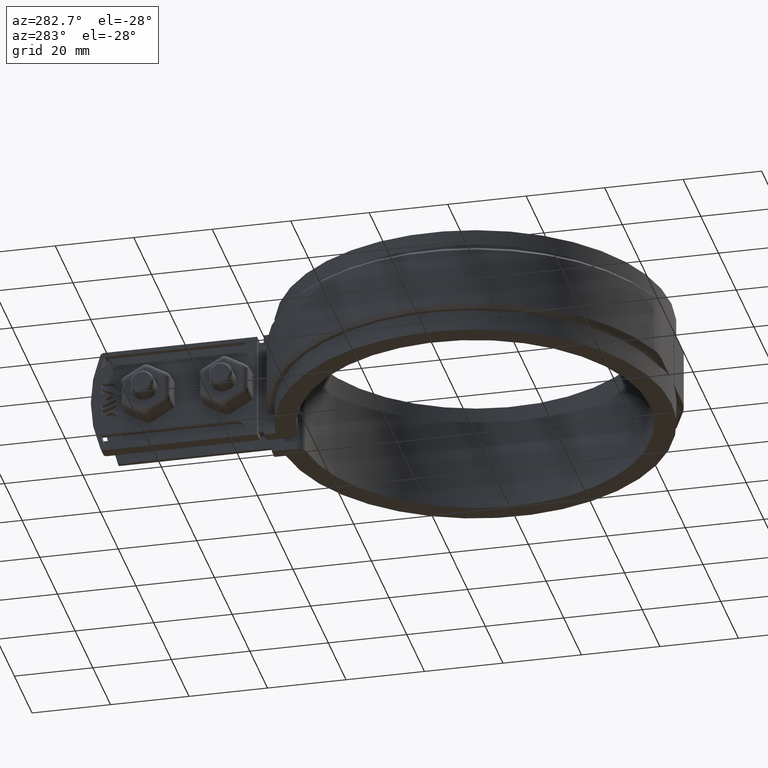
[diagram: clean part render]
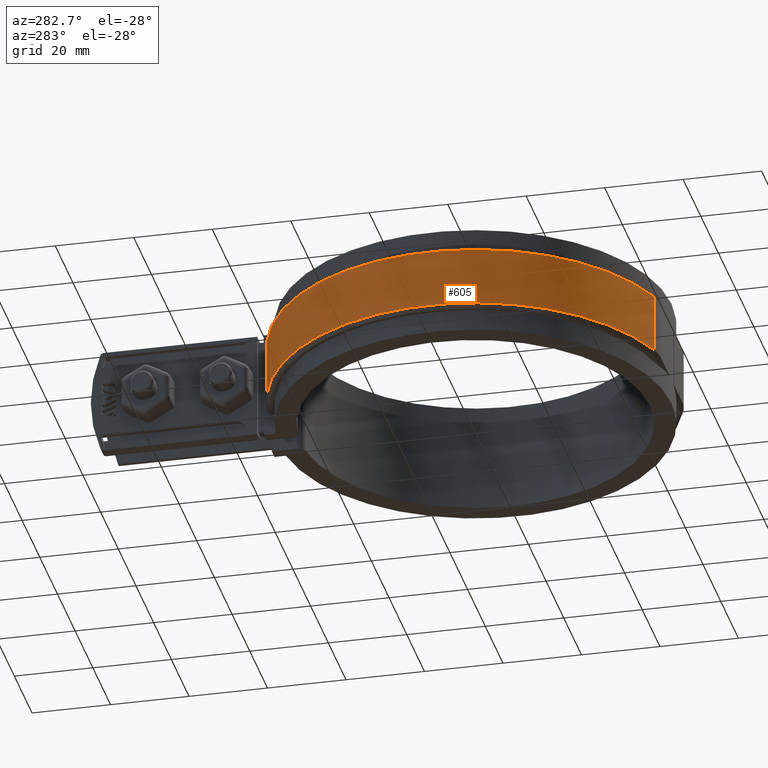
[diagram: same view with one face highlighted and labeled with its STEP entity id]
A machine part, auxiliary view. The second image highlights one B-rep face of the part: STEP entity #605.
In plain terms, the highlighted cylindrical surface (partial cylindrical patch) has radius 52 mm, axis along (0, 0, 1).
Its self-contained STEP definition (entity closure, byte-faithful):
#605 = ADVANCED_FACE( '', ( #1142 ), #1143, .T. );
#1142 = FACE_OUTER_BOUND( '', #2465, .T. );
#1143 = CYLINDRICAL_SURFACE( '', #2466, 52.0000000000000 );
#2465 = EDGE_LOOP( '', ( #5789, #5790, #5791, #5792 ) );
#2466 = AXIS2_PLACEMENT_3D( '', #5793, #5794, #5795 );
#5789 = ORIENTED_EDGE( '', *, *, #7743, .T. );
#5790 = ORIENTED_EDGE( '', *, *, #7894, .T. );
#5791 = ORIENTED_EDGE( '', *, *, #7901, .F. );
#5792 = ORIENTED_EDGE( '', *, *, #7965, .T. );
#5793 = CARTESIAN_POINT( '', ( 0.000000000000000, 6.93889390390723E-015, -8.50000000000000 ) );
#5794 = DIRECTION( '', ( 0.000000000000000, 0.000000000000000, 1.00000000000000 ) );
#5795 = DIRECTION( '', ( -0.0961538461538461, 0.995366484200579, 0.000000000000000 ) );
#7743 = EDGE_CURVE( '', #8853, #8851, #8854, .T. );
#7894 = EDGE_CURVE( '', #8851, #9125, #9128, .T. );
#7901 = EDGE_CURVE( '', #9137, #9125, #9139, .F. );
#7965 = EDGE_CURVE( '', #9137, #8853, #9236, .T. );
#8851 = VERTEX_POINT( '', #11973 );
#8853 = VERTEX_POINT( '', #11975 );
#8854 = LINE( '', #11976, #11977 );
#9125 = VERTEX_POINT( '', #12844 );
#9128 = CIRCLE( '', #12850, 52.0000000000000 );
#9137 = VERTEX_POINT( '', #12863 );
#9139 = LINE( '', #12868, #12869 );
#9236 = CIRCLE( '', #13062, 52.0000000000000 );
#11973 = CARTESIAN_POINT( '', ( -16.6585009458195, -49.2594594594595, 7.49999999999995 ) );
#11975 = CARTESIAN_POINT( '', ( -16.6585009458195, -49.2594594594595, -7.49999999999995 ) );
#11976 = CARTESIAN_POINT( '', ( -16.6585009458195, -49.2594594594595, -8.50000000000000 ) );
#11977 = VECTOR( '', #14801, 1000.00000000000 );
#12844 = CARTESIAN_POINT( '', ( -5.99999999999999, 51.6526862805798, 7.50000000000000 ) );
#12850 = AXIS2_PLACEMENT_3D( '', #14933, #14934, #14935 );
#12863 = CARTESIAN_POINT( '', ( -5.99999999999999, 51.6526862805799, -7.50000000000000 ) );
#12868 = CARTESIAN_POINT( '', ( -5.99999999999999, 51.6526862805799, -8.50000000000000 ) );
#12869 = VECTOR( '', #14943, 1000.00000000000 );
#13062 = AXIS2_PLACEMENT_3D( '', #15015, #15016, #15017 );
#14801 = DIRECTION( '', ( 0.000000000000000, 0.000000000000000, 1.00000000000000 ) );
#14933 = CARTESIAN_POINT( '', ( 0.000000000000000, 6.93889390390723E-015, 7.50000000000000 ) );
#14934 = DIRECTION( '', ( 0.000000000000000, 0.000000000000000, -1.00000000000000 ) );
#14935 = DIRECTION( '', ( -1.00000000000000, 0.000000000000000, 0.000000000000000 ) );
#14943 = DIRECTION( '', ( 0.000000000000000, 0.000000000000000, -1.00000000000000 ) );
#15015 = CARTESIAN_POINT( '', ( 0.000000000000000, 6.93889390390723E-015, -7.50000000000000 ) );
#15016 = DIRECTION( '', ( 0.000000000000000, 0.000000000000000, 1.00000000000000 ) );
#15017 = DIRECTION( '', ( 1.00000000000000, 0.000000000000000, 0.000000000000000 ) );